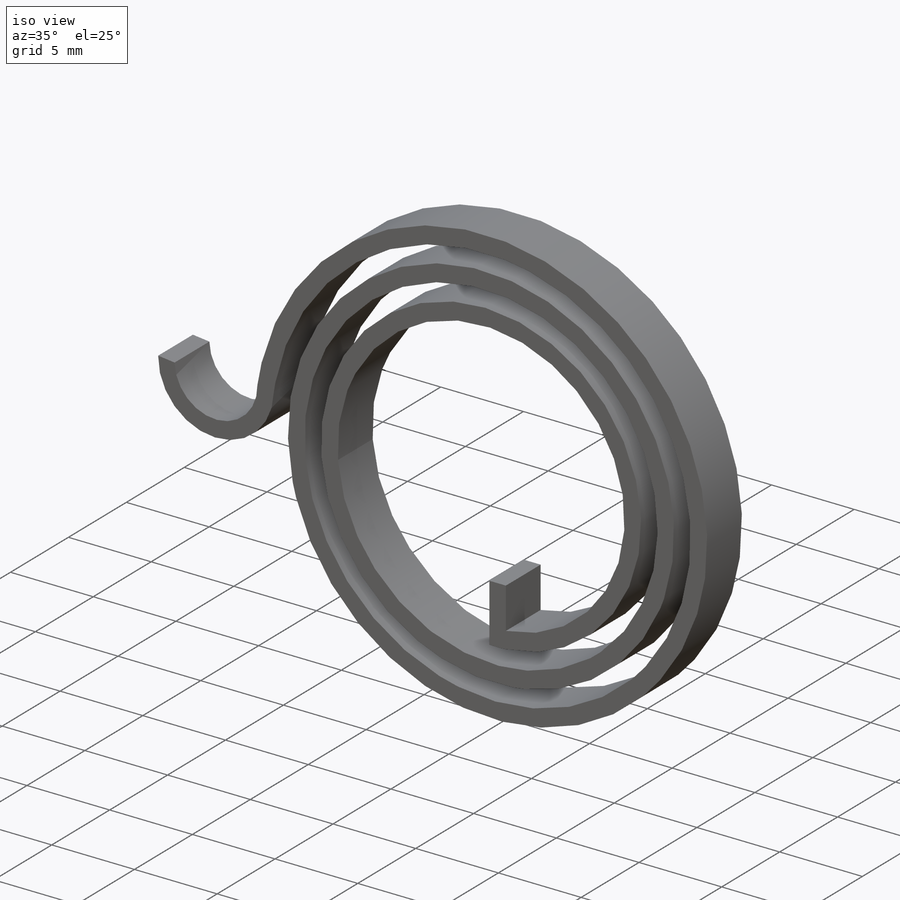
[diagram: iso view]
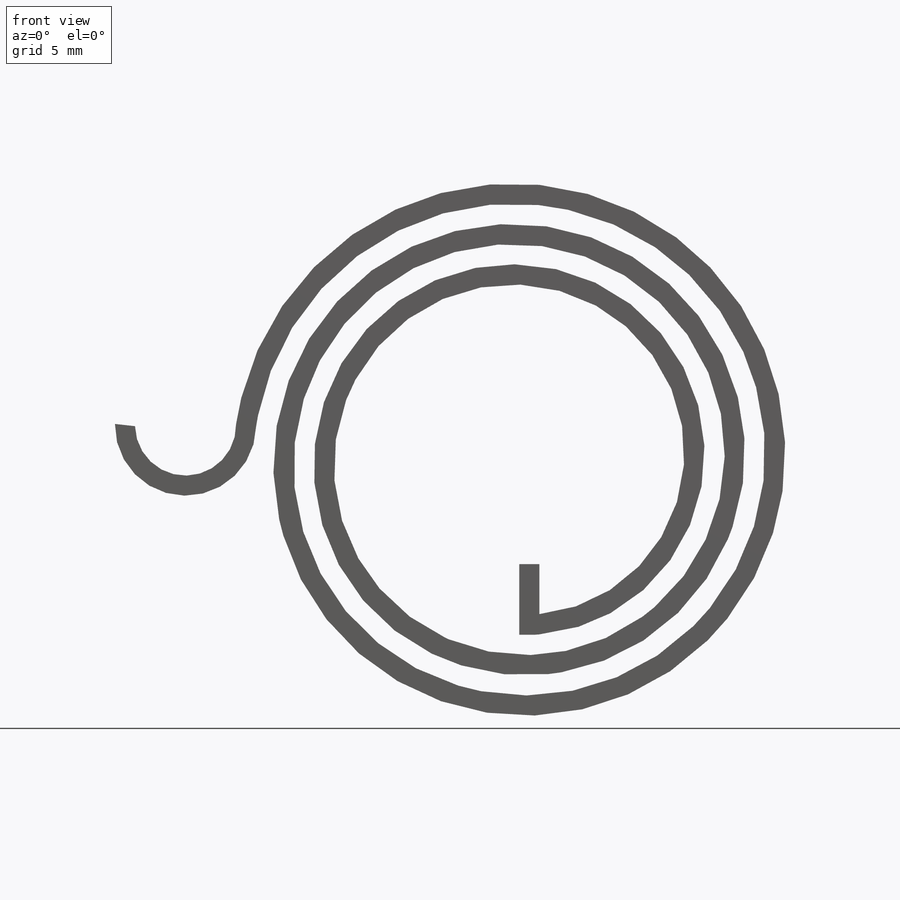
[diagram: front view]
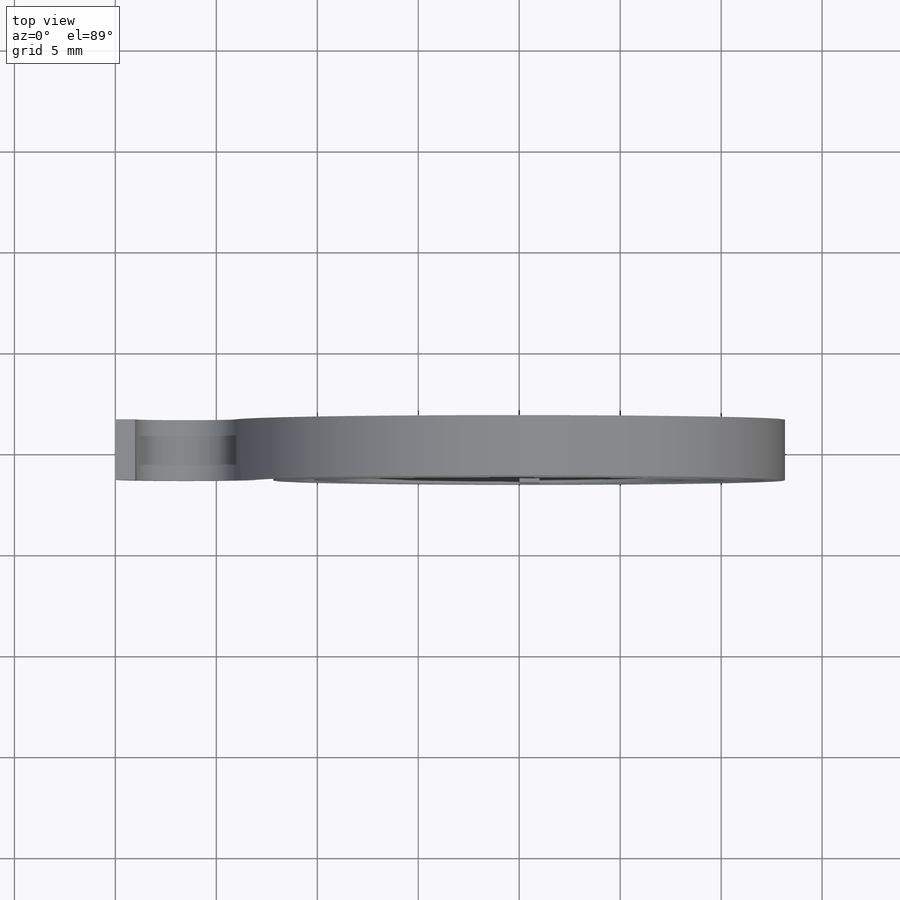
[diagram: top view]
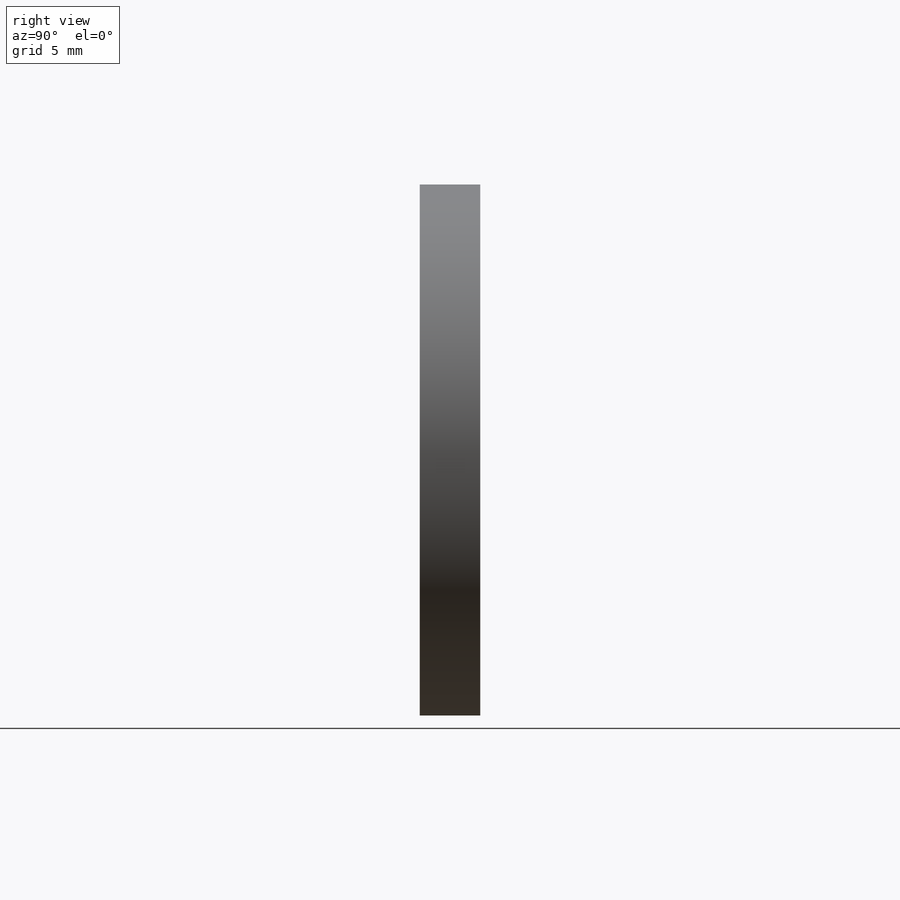
[diagram: right view]
SOLIDWORKS PART (.sldprt)
format: sldprt  version: not decoded by parser v0  size: 313,344 bytes
history: native  units: mm
features: sketch x6, plane x3, sweep x3, material x1, helix x1, fillet x1 (+12 scaffold rows collapsed)
feature tree (27):
  scaffold x12  (default folders/planes/origin — collapsed)
  material  "Acier inoxydable moulé"
  plane  "Face"
  plane  "Dessus"
  plane  "Droite"
  sketch  "Esquisse2"  dims[D1=16.0mm]
  helix  "Hélice/Spirale1"  Pitch=2mm
  sketch  "Esquisse3"  dims[D1=1.0mm D2=3.0mm]
  sweep  "Balayage1"
  sketch  "Esquisse4"  dims[D1=6.0mm D2=3.0mm D3=3.0mm D4=~16.499815mm]
  sketch  "Esquisse5"
  sweep  "Balayage2"
  sketch  "Esquisse6"  dims[D1=3.0mm D2=0.5mm]
  sketch  "Esquisse7"
  sweep  "Balayage3"
  fillet  "Congé1"  Radius=2mm
decode coverage: 6 of 11 modeling features carry decoded parameters
note: ~ marks probable driven/reference dimensions
note: suppression state not decoded; provenance and decode notes live in map.json
